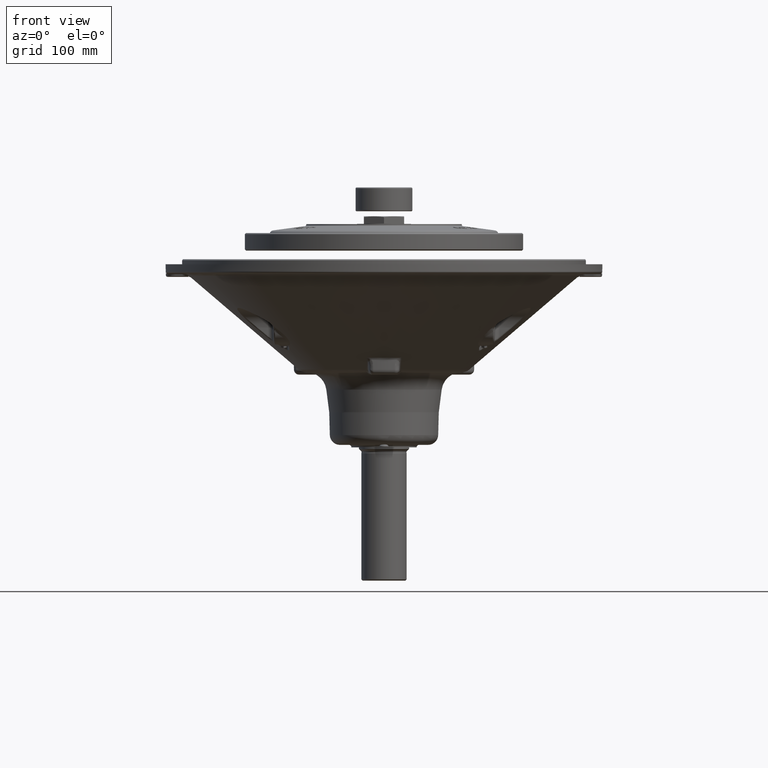
[diagram: clean part render]
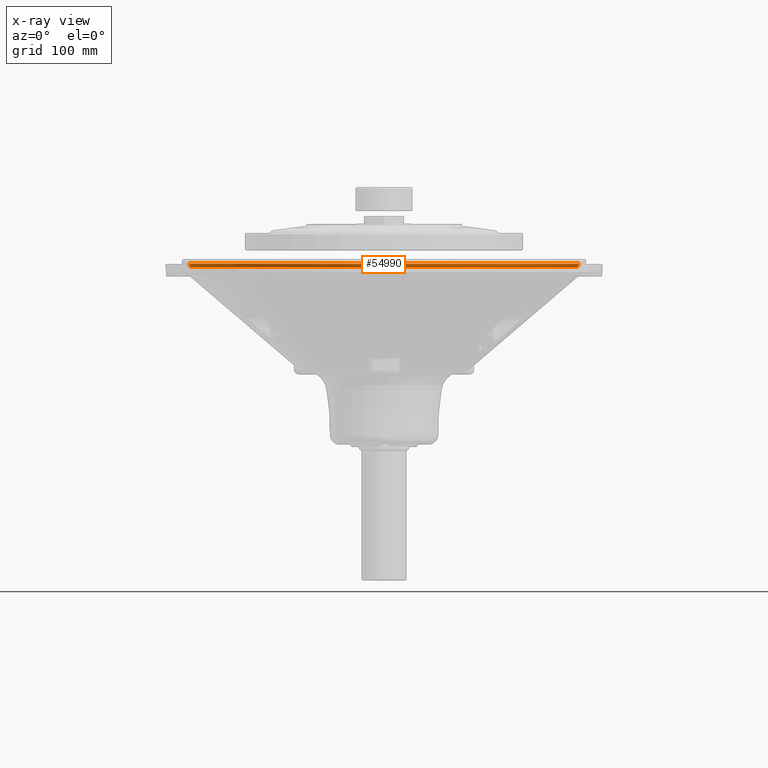
[diagram: x-ray — body ghosted, one internal face saturated and labeled with its STEP entity id]
A machine part, front view, then the same camera in x-ray: the body is ghosted and one INTERNAL B-rep face — a face not visible from any outside direction — is saturated and labeled: STEP entity #54990.
In plain terms, the highlighted toroidal blend (fillet) surface has major radius 240.36 mm and minor (blend) radius 6.35 mm.
Its self-contained STEP definition (entity closure, byte-faithful):
#18471 = AXIS2_PLACEMENT_3D ( 'NONE', #31166, #31156, #31175 ) ;
#23974 = CARTESIAN_POINT ( 'NONE',  ( -246.7080253426756800, 3.021301935598718200E-014, 0.6895287069557041200 ) ) ;
#23975 = CARTESIAN_POINT ( 'NONE',  ( 246.7080253426756800, 0.0000000000000000000, 0.6895287069557041200 ) ) ;
#23978 = CARTESIAN_POINT ( 'NONE',  ( -244.4841964359775700, 3.007684910836522500E-014, -3.972825552849477100 ) ) ;
#24015 = CARTESIAN_POINT ( 'NONE',  ( 244.4841964359775700, 0.0000000000000000000, -3.972825552849477100 ) ) ;
#25829 = EDGE_CURVE ( 'NONE', #55430, #55431, #27335, .T. ) ;
#25841 = EDGE_CURVE ( 'NONE', #55434, #55430, #27353, .T. ) ;
#25875 = EDGE_CURVE ( 'NONE', #55471, #55431, #27408, .T. ) ;
#25943 = EDGE_CURVE ( 'NONE', #55434, #55471, #27508, .T. ) ;
#27335 = CIRCLE ( 'NONE', #45893, 246.7080253426756800 ) ;
#27353 = CIRCLE ( 'NONE', #45899, 6.350000000000022700 ) ;
#27408 = CIRCLE ( 'NONE', #45907, 6.350000000000010300 ) ;
#27508 = CIRCLE ( 'NONE', #45927, 244.4841964359775700 ) ;
#31156 = DIRECTION ( 'NONE',  ( -0.0000000000000000000, -0.0000000000000000000, 1.000000000000000000 ) ) ;
#31166 = CARTESIAN_POINT ( 'NONE',  ( 0.0000000000000000000, 0.0000000000000000000, 0.8557523287107283700 ) ) ;
#31175 = DIRECTION ( 'NONE',  ( 1.000000000000000000, 0.0000000000000000000, 0.0000000000000000000 ) ) ;
#32983 = FACE_OUTER_BOUND ( 'NONE', #39953, .T. ) ;
#33078 = TOROIDAL_SURFACE ( 'NONE', #18471, 240.3602013290808900, 6.350000000000010300 ) ;
#39953 = EDGE_LOOP ( 'NONE', ( #63579, #63580, #63581, #63582 ) ) ;
#45893 = AXIS2_PLACEMENT_3D ( 'NONE', #47837, #47843, #47844 ) ;
#45899 = AXIS2_PLACEMENT_3D ( 'NONE', #47868, #47869, #47870 ) ;
#45907 = AXIS2_PLACEMENT_3D ( 'NONE', #47929, #47951, #47952 ) ;
#45927 = AXIS2_PLACEMENT_3D ( 'NONE', #48222, #48229, #48230 ) ;
#47837 = CARTESIAN_POINT ( 'NONE',  ( 0.0000000000000000000, 0.0000000000000000000, 0.6895287069557041200 ) ) ;
#47843 = DIRECTION ( 'NONE',  ( -0.0000000000000000000, -0.0000000000000000000, 1.000000000000000000 ) ) ;
#47844 = DIRECTION ( 'NONE',  ( 1.000000000000000000, 0.0000000000000000000, 0.0000000000000000000 ) ) ;
#47868 = CARTESIAN_POINT ( 'NONE',  ( -240.3602013290808900, 2.943563512000722800E-014, 0.8557523287107283700 ) ) ;
#47869 = DIRECTION ( 'NONE',  ( 1.224646799147353200E-016, 1.000000000000000000, 0.0000000000000000000 ) ) ;
#47870 = DIRECTION ( 'NONE',  ( -1.000000000000000000, 1.224646799147354900E-016, 0.0000000000000000000 ) ) ;
#47929 = CARTESIAN_POINT ( 'NONE',  ( 240.3602013290808900, 0.0000000000000000000, 0.8557523287107283700 ) ) ;
#47951 = DIRECTION ( 'NONE',  ( 0.0000000000000000000, -1.000000000000000000, 0.0000000000000000000 ) ) ;
#47952 = DIRECTION ( 'NONE',  ( 0.0000000000000000000, 0.0000000000000000000, -1.000000000000000000 ) ) ;
#48222 = CARTESIAN_POINT ( 'NONE',  ( 0.0000000000000000000, 0.0000000000000000000, -3.972825552849477100 ) ) ;
#48229 = DIRECTION ( 'NONE',  ( -0.0000000000000000000, -0.0000000000000000000, 1.000000000000000000 ) ) ;
#48230 = DIRECTION ( 'NONE',  ( 1.000000000000000000, 0.0000000000000000000, 0.0000000000000000000 ) ) ;
#54990 = ADVANCED_FACE ( 'NONE', ( #32983 ), #33078, .F. ) ;
#55430 = VERTEX_POINT ( 'NONE', #23974 ) ;
#55431 = VERTEX_POINT ( 'NONE', #23975 ) ;
#55434 = VERTEX_POINT ( 'NONE', #23978 ) ;
#55471 = VERTEX_POINT ( 'NONE', #24015 ) ;
#63579 = ORIENTED_EDGE ( 'NONE', *, *, #25943, .F. ) ;
#63580 = ORIENTED_EDGE ( 'NONE', *, *, #25841, .T. ) ;
#63581 = ORIENTED_EDGE ( 'NONE', *, *, #25829, .T. ) ;
#63582 = ORIENTED_EDGE ( 'NONE', *, *, #25875, .F. ) ;